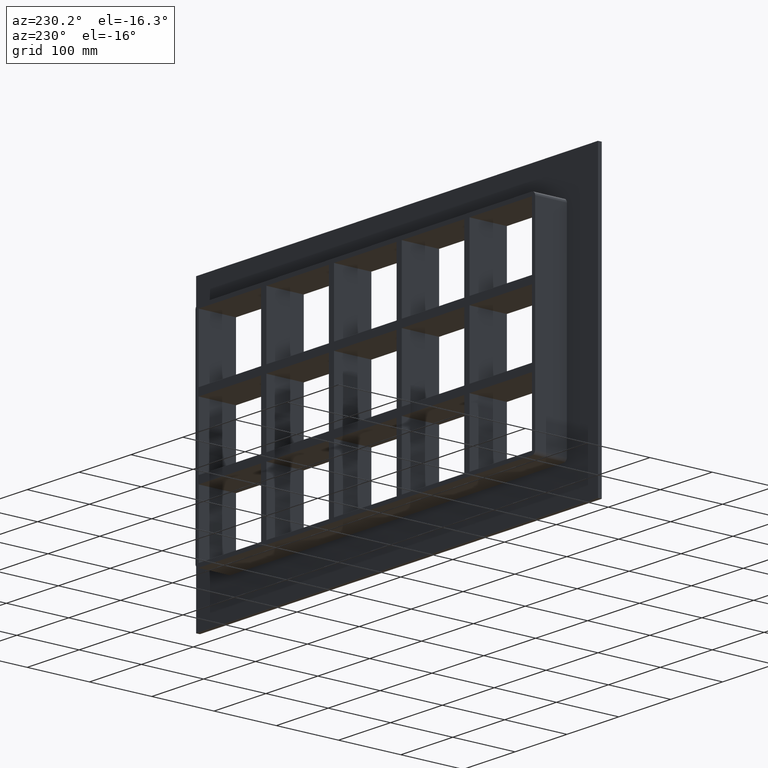
[diagram: clean part render]
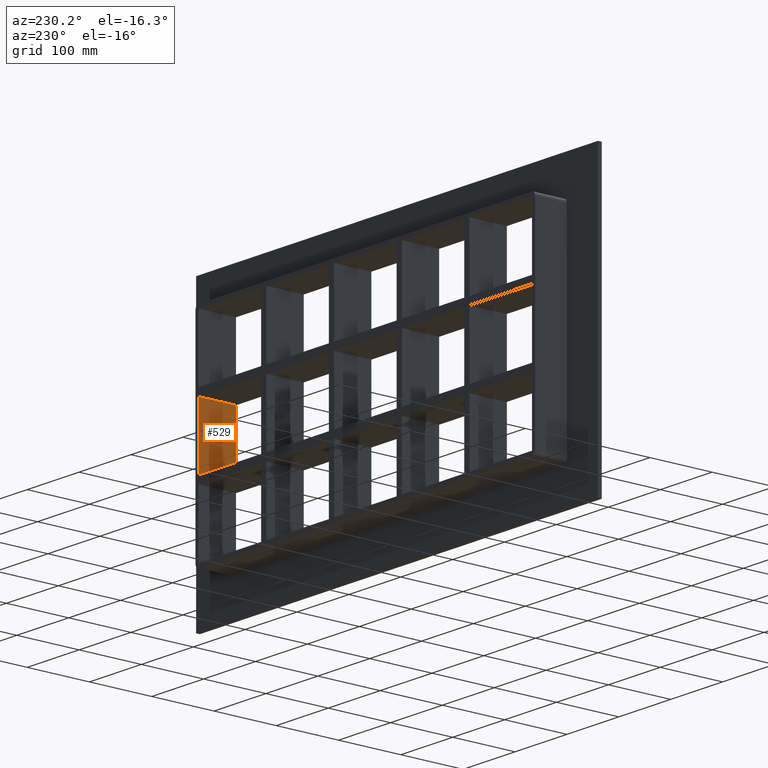
[diagram: same view with one face highlighted and labeled with its STEP entity id]
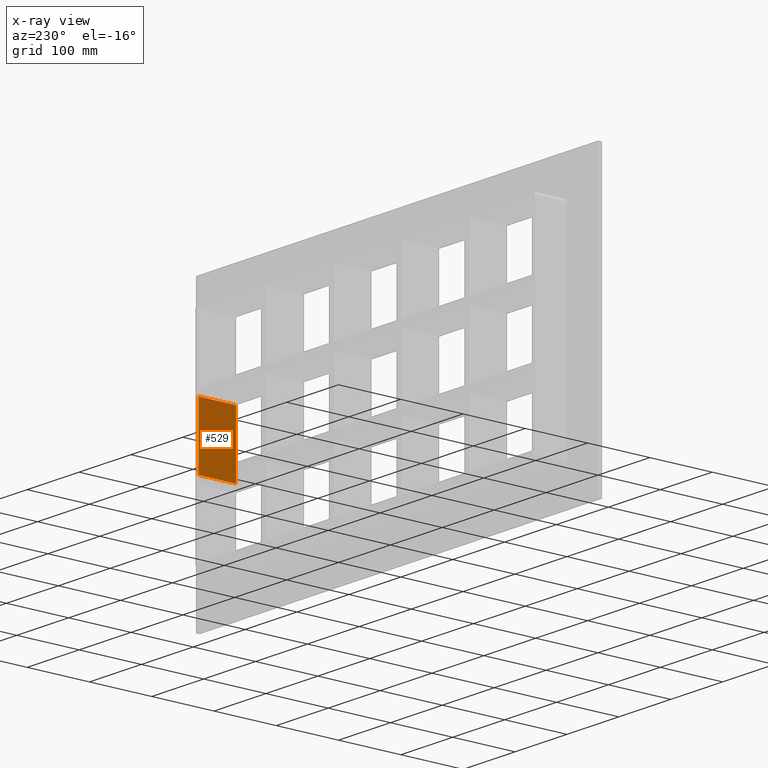
[diagram: x-ray of the same camera — body ghosted, the highlighted face saturated]
A machine part, auxiliary view. The second image highlights one B-rep face of the part: STEP entity #529.
The next image is the same camera in x-ray: the body ghosted, the highlighted face saturated — about 1% of this face is hidden behind the body in this view.
In plain terms, the highlighted planar face has unit normal (1, 0, 0).
Its self-contained STEP definition (entity closure, byte-faithful):
#203=CARTESIAN_POINT('',(321.25,57.0,50.49999999999077));
#204=VERTEX_POINT('',#203);
#211=CARTESIAN_POINT('',(321.25,-3.0,50.49999999999077));
#212=VERTEX_POINT('',#211);
#213=CARTESIAN_POINT('',(321.25,-3.0,50.49999999999077));
#214=DIRECTION('',(0.0,1.0,0.0));
#215=VECTOR('',#214,60.000000000000007);
#216=LINE('',#213,#215);
#217=EDGE_CURVE('',#212,#204,#216,.T.);
#499=CARTESIAN_POINT('',(321.25,0.0,163.5));
#500=DIRECTION('',(1.0,0.0,0.0));
#501=DIRECTION('',(0.0,0.0,-1.0));
#502=AXIS2_PLACEMENT_3D('',#499,#500,#501);
#503=PLANE('',#502);
#504=ORIENTED_EDGE('',*,*,#217,.T.);
#505=CARTESIAN_POINT('',(321.25,57.0,-50.500000000000114));
#506=VERTEX_POINT('',#505);
#507=CARTESIAN_POINT('',(321.25,57.0,-50.500000000000128));
#508=DIRECTION('',(0.0,0.0,1.0));
#509=VECTOR('',#508,100.99999999999089);
#510=LINE('',#507,#509);
#511=EDGE_CURVE('',#506,#204,#510,.T.);
#512=ORIENTED_EDGE('',*,*,#511,.F.);
#513=CARTESIAN_POINT('',(321.24999999999994,-3.0,-50.500000000000114));
#514=VERTEX_POINT('',#513);
#515=CARTESIAN_POINT('',(321.25,57.000000000000007,-50.500000000000114));
#516=DIRECTION('',(0.0,-1.0,0.0));
#517=VECTOR('',#516,60.000000000000007);
#518=LINE('',#515,#517);
#519=EDGE_CURVE('',#506,#514,#518,.T.);
#520=ORIENTED_EDGE('',*,*,#519,.T.);
#521=CARTESIAN_POINT('',(321.25,-3.0,50.499999999990763));
#522=DIRECTION('',(0.0,0.0,-1.0));
#523=VECTOR('',#522,100.99999999999089);
#524=LINE('',#521,#523);
#525=EDGE_CURVE('',#212,#514,#524,.T.);
#526=ORIENTED_EDGE('',*,*,#525,.F.);
#527=EDGE_LOOP('',(#504,#512,#520,#526));
#528=FACE_OUTER_BOUND('',#527,.T.);
#529=ADVANCED_FACE('',(#528),#503,.F.);